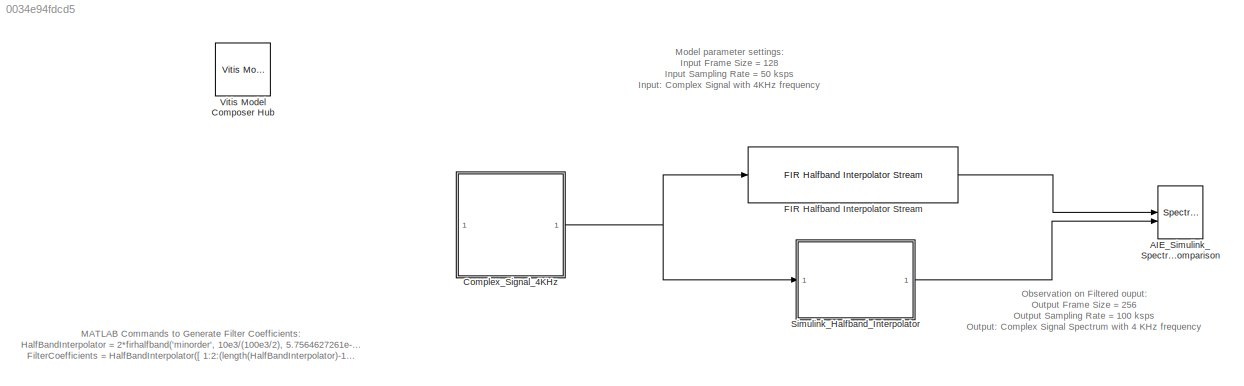
MODEL slx_0034e94fdcd5
KIND model
CONFIG AbsTol = auto
CONFIG EnableMultiTasking = off
CONFIG FixedStep = auto
CONFIG MaxStep = auto
CONFIG MinStep = auto
CONFIG PostLoadFcn = HalfBandInterpolator  = 2*firhalfband('minorder', 10e3/(100e3/2), 5.7564627261e-05);\n\nFilterCoefficients = HalfBandInterpolator([ 1:2:(length(HalfBandInterpolator)-1)/2 (length(HalfBandInterpolator)+1)/2]);
CONFIG RelTol = 1e-3
CONFIG SampleTimeConstraint = Unconstrained
CONFIG SolverName = VariableStepAuto
CONFIG StartTime = 0.0
CONFIG StopTime = 1
BLOCK [SpectrumAnalyzer] AIE_Simulink_SpectrumComparison
  AllowFFTLengthLessThanSamplesPerUpdate = on
  AveragingMethod = Exponential
  ChannelNames = [""]
  DefaultConfigurationName = spbscopes.SpectrumAnalyzerBlockCfg
  NumInputPorts = 2
  ScopeSpecificationString = spbscopes.SpectrumAnalyzerBlockCfg('CurrentConfiguration', extmgr.ConfigurationSet(extmgr.Configuration('Core','General UI',true,'FigureColor',[0.16        0.16        0.16]),extmgr.Configuration('Visuals','Spectrum',true,'Title','','YLabel','','MinYLim','-71.7238','MaxYLim','25.7084','Legend',true,'AxesProperties',struct('XGrid',{'on','on'},'YGrid',{'on','on'},'ZGrid',{'on','on'},'Color',{[0 0 0]...<+2400ch>
  ShowLegend = on
  WasSavedAsWebScope = on
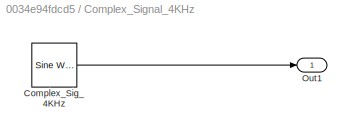
BLOCK [SubSystem] Complex_Signal_4KHz 
BLOCK [Reference] Complex_Signal_4KHz /Complex_Sig_4KHz  REF=dspsrcs4/Sine Wave
  SourceBlock = dspsrcs4/Sine Wave
  SourceType = Sine Wave
BLOCK [Outport] Complex_Signal_4KHz /Out1
BLOCK [Reference] FIR Halfband Interpolator Stream  REF=aieDSP/FIR Halfband Interpolator Stream
  SourceBlock = aieDSP/FIR Halfband Interpolator Stream
  SourceType = FIR Halfband Interpolator Stream
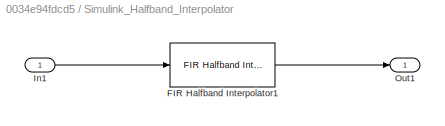
BLOCK [SubSystem] Simulink_Halfband_Interpolator
BLOCK [Reference] Simulink_Halfband_Interpolator/FIR Halfband Interpolator1  REF=dspmlti4/FIR Halfband
Interpolator
  SourceBlock = dspmlti4/FIR Halfband\nInterpolator
  SourceType = dsp.simulink.FIRHalfbandInterpolator
BLOCK [Inport] Simulink_Halfband_Interpolator/In1
BLOCK [Outport] Simulink_Halfband_Interpolator/Out1
BLOCK [Reference] Vitis Model Composer Hub  REF=vmcUtilities/Vitis Model Composer Hub
  SourceBlock = vmcUtilities/Vitis Model Composer Hub
  SourceType = VMC Hub
  Tag = genX
  UserDataPersistent = on
ANNOTATION (root): MATLAB Commands to Generate Filter Coefficients: HalfBandInterpolator = 2*firhalfband( 'minorder' , 10e3/(100e3/2), 5.7564627261e-05); FilterCoefficients = HalfBandInterpolator([ 1:2:(length(HalfBandInterpolator)-1)/2 (length(HalfBandInterpolator)+1)/2]) ;
ANNOTATION (root): Model parameter settings: Input Frame Size = 128 Input Sampling Rate = 50 ksps Input: Complex Signal with 4KHz frequency
ANNOTATION (root): Observation on Filtered ouput: Output Frame Size = 256 Output Sampling Rate = 100 ksps Output: Complex Signal Spectrum with 4 KHz frequency
LINE Complex_Signal_4KHz /Complex_Sig_4KHz:1 -> Complex_Signal_4KHz /Out1:1
NET Complex_Signal_4KHz :1 -> FIR Halfband Interpolator Stream:1, Simulink_Halfband_Interpolator:1
LINE FIR Halfband Interpolator Stream:1 -> AIE_Simulink_SpectrumComparison:1
LINE Simulink_Halfband_Interpolator/FIR Halfband Interpolator1:1 -> Simulink_Halfband_Interpolator/Out1:1
LINE Simulink_Halfband_Interpolator/In1:1 -> Simulink_Halfband_Interpolator/FIR Halfband Interpolator1:1
LINE Simulink_Halfband_Interpolator:1 -> AIE_Simulink_SpectrumComparison:2
note: NET lines group one-source signal fan-out (src -> all destinations, sorted); 1:1 wires keep LINE
